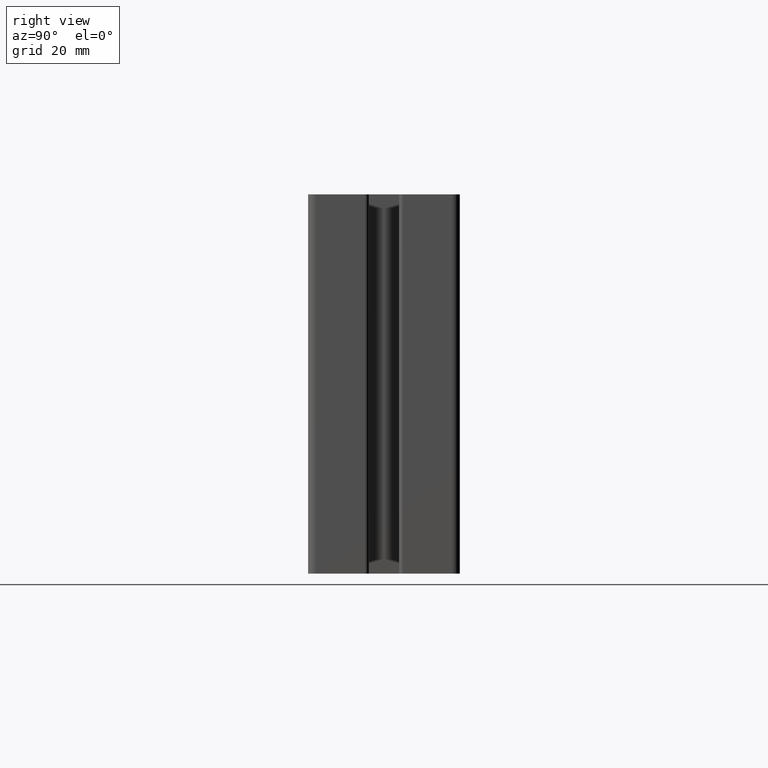
[diagram: clean part render]
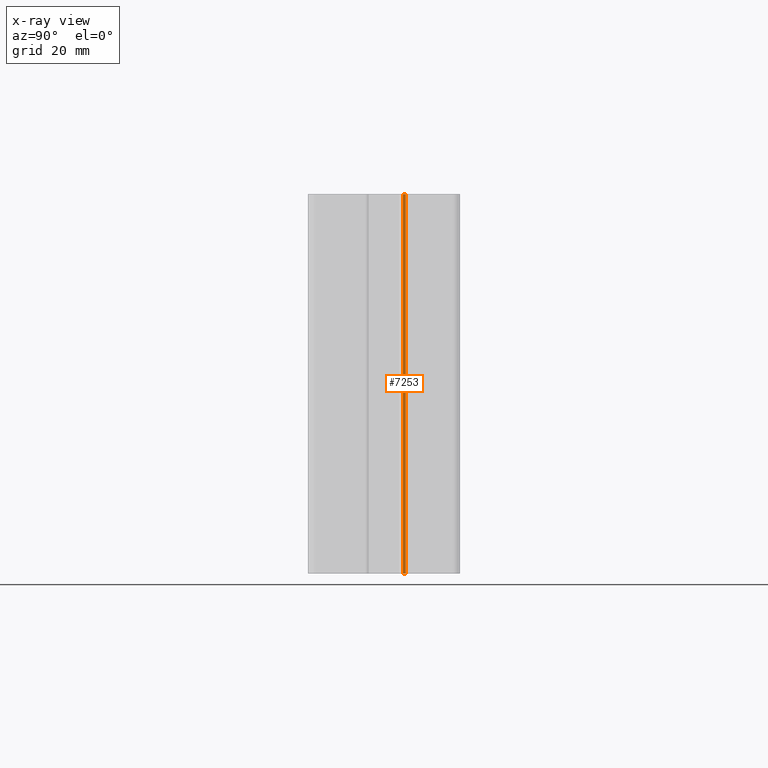
[diagram: x-ray — body ghosted, one internal face saturated and labeled with its STEP entity id]
A machine part, right view, then the same camera in x-ray: the body is ghosted and one INTERNAL B-rep face — a face not visible from any outside direction — is saturated and labeled: STEP entity #7253.
In plain terms, the highlighted cylindrical surface (edge-blend (fillet) strip) has radius 1 mm, axis along (0, 0, 1).
Its self-contained STEP definition (entity closure, byte-faithful):
#279=FACE_OUTER_BOUND('',#657,.T.);
#657=EDGE_LOOP('',(#4945,#4946,#4947,#4948));
#1101=LINE('',#10816,#1865);
#1102=LINE('',#10822,#1866);
#1865=VECTOR('',#8573,100.);
#1866=VECTOR('',#8580,100.);
#2589=CIRCLE('',#7674,1.);
#2590=CIRCLE('',#7675,1.);
#2989=VERTEX_POINT('',#10812);
#2990=VERTEX_POINT('',#10814);
#2991=VERTEX_POINT('',#10818);
#2992=VERTEX_POINT('',#10820);
#3781=EDGE_CURVE('',#2990,#2989,#1101,.T.);
#3782=EDGE_CURVE('',#2989,#2991,#2589,.T.);
#3783=EDGE_CURVE('',#2992,#2990,#2590,.T.);
#3784=EDGE_CURVE('',#2992,#2991,#1102,.T.);
#4945=ORIENTED_EDGE('',*,*,#3782,.F.);
#4946=ORIENTED_EDGE('',*,*,#3781,.F.);
#4947=ORIENTED_EDGE('',*,*,#3783,.F.);
#4948=ORIENTED_EDGE('',*,*,#3784,.T.);
#7053=CYLINDRICAL_SURFACE('',#7673,1.);
#7253=ADVANCED_FACE('',(#279),#7053,.F.);
#7673=AXIS2_PLACEMENT_3D('',#10817,#8574,#8575);
#7674=AXIS2_PLACEMENT_3D('',#10819,#8576,#8577);
#7675=AXIS2_PLACEMENT_3D('',#10821,#8578,#8579);
#8573=DIRECTION('',(0.,0.,1.));
#8574=DIRECTION('center_axis',(0.,0.,1.));
#8575=DIRECTION('ref_axis',(-0.707106781186554,0.707106781186541,0.));
#8576=DIRECTION('center_axis',(0.,0.,-1.));
#8577=DIRECTION('ref_axis',(-0.707106781186554,0.707106781186541,0.));
#8578=DIRECTION('center_axis',(0.,0.,1.));
#8579=DIRECTION('ref_axis',(-0.707106781186554,0.707106781186541,0.));
#8580=DIRECTION('',(0.,0.,1.));
#10812=CARTESIAN_POINT('',(-53.5,5.02512626584706,100.));
#10814=CARTESIAN_POINT('',(-53.5,5.02512626584706,0.));
#10816=CARTESIAN_POINT('',(-53.5,5.02512626584706,0.));
#10817=CARTESIAN_POINT('Origin',(-52.5,5.02512626584706,0.));
#10818=CARTESIAN_POINT('',(-53.2071067811866,5.7322330470336,100.));
#10819=CARTESIAN_POINT('Origin',(-52.5,5.02512626584706,100.));
#10820=CARTESIAN_POINT('',(-53.2071067811866,5.7322330470336,0.));
#10821=CARTESIAN_POINT('Origin',(-52.5,5.02512626584706,0.));
#10822=CARTESIAN_POINT('',(-53.2071067811866,5.7322330470336,0.));